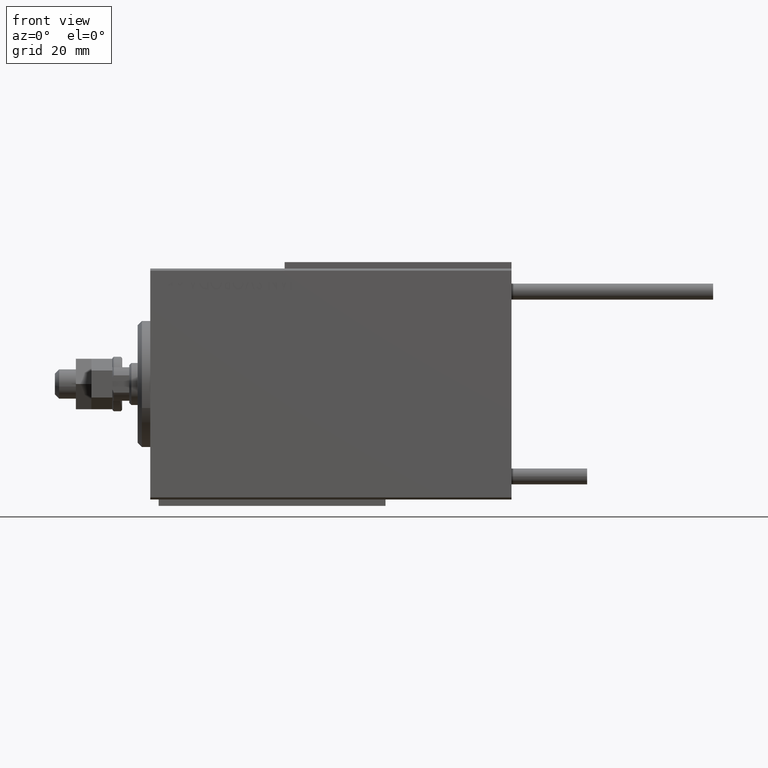
[diagram: clean part render]
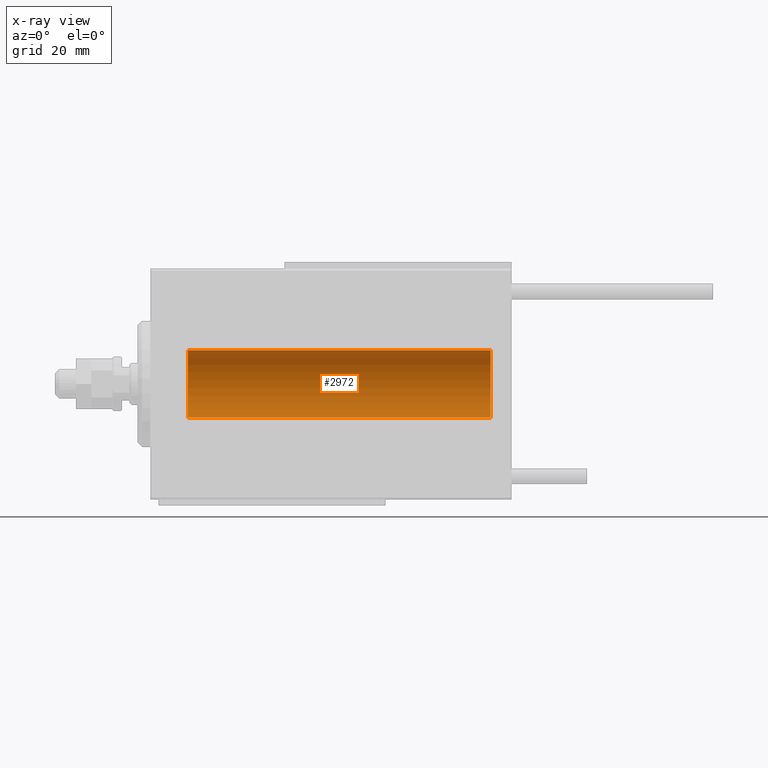
[diagram: x-ray — body ghosted, one internal face saturated and labeled with its STEP entity id]
A machine part, front view, then the same camera in x-ray: the body is ghosted and one INTERNAL B-rep face — a face not visible from any outside direction — is saturated and labeled: STEP entity #2972.
In plain terms, the highlighted cylindrical surface (edge-blend (fillet) strip) has radius 8 mm, axis along (-1, -0, -0).
Its self-contained STEP definition (entity closure, byte-faithful):
#1391 = DIRECTION ( 'NONE',  ( -1.000000000000000000, 0.000000000000000000, 0.000000000000000000 ) ) ;
#2972 = ADVANCED_FACE ( 'NONE', ( #4569 ), #20033, .F. ) ;
#3274 = CARTESIAN_POINT ( 'NONE',  ( 8.999999999999994671, 0.000000000000000000, 7.999999999999998224 ) ) ;
#4569 = FACE_OUTER_BOUND ( 'NONE', #33859, .T. ) ;
#6047 = AXIS2_PLACEMENT_3D ( 'NONE', #35524, #47181, #37265 ) ;
#7854 = CARTESIAN_POINT ( 'NONE',  ( 81.00000000000000000, 0.000000000000000000, 7.999999999999998224 ) ) ;
#9249 = CARTESIAN_POINT ( 'NONE',  ( 81.00000000000000000, 0.000000000000000000, 0.000000000000000000 ) ) ;
#9437 = DIRECTION ( 'NONE',  ( -1.000000000000000000, -0.000000000000000000, -0.000000000000000000 ) ) ;
#11459 = DIRECTION ( 'NONE',  ( 0.000000000000000000, 0.000000000000000000, 1.000000000000000000 ) ) ;
#16043 = VERTEX_POINT ( 'NONE', #3274 ) ;
#16383 = AXIS2_PLACEMENT_3D ( 'NONE', #38113, #26466, #11459 ) ;
#16769 = EDGE_CURVE ( 'NONE', #48637, #16043, #29959, .T. ) ;
#17311 = CARTESIAN_POINT ( 'NONE',  ( 8.999999999999994671, 9.797174393178823685E-16, -7.999999999999998224 ) ) ;
#19658 = CIRCLE ( 'NONE', #16383, 7.999999999999998224 ) ;
#19770 = AXIS2_PLACEMENT_3D ( 'NONE', #9249, #1391, #24738 ) ;
#20033 = CYLINDRICAL_SURFACE ( 'NONE', #6047, 7.999999999999998224 ) ;
#21624 = LINE ( 'NONE', #40134, #38296 ) ;
#23602 = CARTESIAN_POINT ( 'NONE',  ( 81.00000000000000000, 9.797174393178823685E-16, -7.999999999999998224 ) ) ;
#24738 = DIRECTION ( 'NONE',  ( 0.000000000000000000, 0.000000000000000000, 1.000000000000000000 ) ) ;
#26466 = DIRECTION ( 'NONE',  ( -1.000000000000000000, 0.000000000000000000, 0.000000000000000000 ) ) ;
#27681 = ORIENTED_EDGE ( 'NONE', *, *, #29708, .F. ) ;
#29708 = EDGE_CURVE ( 'NONE', #37665, #50136, #21624, .T. ) ;
#29959 = LINE ( 'NONE', #7854, #37974 ) ;
#30329 = EDGE_CURVE ( 'NONE', #48637, #37665, #35208, .T. ) ;
#33859 = EDGE_LOOP ( 'NONE', ( #27681, #37010, #47448, #47202 ) ) ;
#35050 = CARTESIAN_POINT ( 'NONE',  ( 81.00000000000000000, 0.000000000000000000, 7.999999999999998224 ) ) ;
#35208 = CIRCLE ( 'NONE', #19770, 7.999999999999998224 ) ;
#35524 = CARTESIAN_POINT ( 'NONE',  ( 81.00000000000000000, 0.000000000000000000, 0.000000000000000000 ) ) ;
#37010 = ORIENTED_EDGE ( 'NONE', *, *, #30329, .F. ) ;
#37265 = DIRECTION ( 'NONE',  ( 0.000000000000000000, 0.000000000000000000, 1.000000000000000000 ) ) ;
#37665 = VERTEX_POINT ( 'NONE', #23602 ) ;
#37974 = VECTOR ( 'NONE', #38304, 1000.000000000000000 ) ;
#38113 = CARTESIAN_POINT ( 'NONE',  ( 8.999999999999994671, 0.000000000000000000, 0.000000000000000000 ) ) ;
#38296 = VECTOR ( 'NONE', #9437, 1000.000000000000000 ) ;
#38304 = DIRECTION ( 'NONE',  ( -1.000000000000000000, -0.000000000000000000, -0.000000000000000000 ) ) ;
#40134 = CARTESIAN_POINT ( 'NONE',  ( 81.00000000000000000, 9.797174393178823685E-16, -7.999999999999998224 ) ) ;
#44884 = EDGE_CURVE ( 'NONE', #16043, #50136, #19658, .T. ) ;
#47181 = DIRECTION ( 'NONE',  ( -1.000000000000000000, -0.000000000000000000, -0.000000000000000000 ) ) ;
#47202 = ORIENTED_EDGE ( 'NONE', *, *, #44884, .T. ) ;
#47448 = ORIENTED_EDGE ( 'NONE', *, *, #16769, .T. ) ;
#48637 = VERTEX_POINT ( 'NONE', #35050 ) ;
#50136 = VERTEX_POINT ( 'NONE', #17311 ) ;